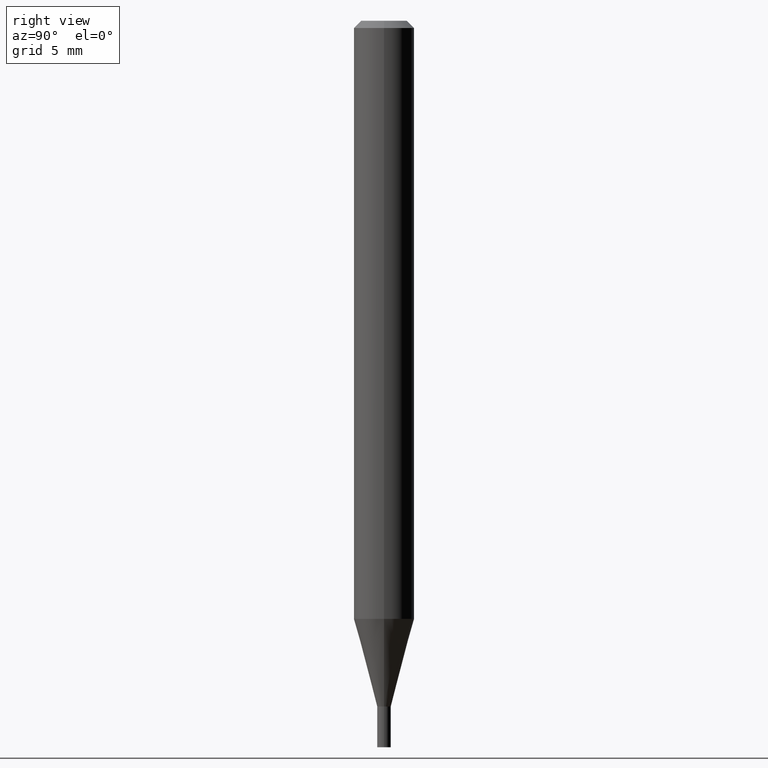
[diagram: clean part render]
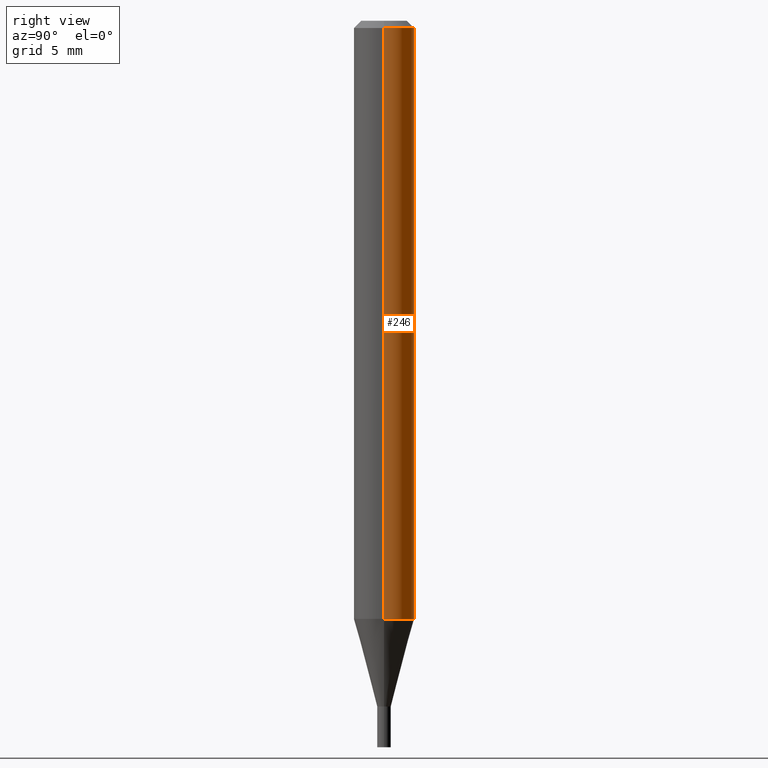
[diagram: same view with one face highlighted and labeled with its STEP entity id]
A machine part, right view. The second image highlights one B-rep face of the part: STEP entity #246.
In plain terms, the highlighted cylindrical surface (edge-blend (fillet) strip) has radius 1.5875 mm, axis along (-0, 0, 1).
Its self-contained STEP definition (entity closure, byte-faithful):
#3 = VERTEX_POINT ( 'NONE', #224 ) ;
#10 = AXIS2_PLACEMENT_3D ( 'NONE', #459, #130, #163 ) ;
#13 = EDGE_LOOP ( 'NONE', ( #422, #400, #143, #165 ) ) ;
#21 = CARTESIAN_POINT ( 'NONE',  ( 3.668203209277705088E-31, -5.237222008264718399E-17, -0.01499999999999999944 ) ) ;
#59 = CARTESIAN_POINT ( 'NONE',  ( -0.06250000000000000000, -1.738078833648857034E-15, -0.01499999999999999944 ) ) ;
#60 = CARTESIAN_POINT ( 'NONE',  ( 0.06250000000000000000, -4.748399034270584284E-15, -1.234995535832908775 ) ) ;
#63 = VERTEX_POINT ( 'NONE', #373 ) ;
#86 = DIRECTION ( 'NONE',  ( -2.445468806185136597E-29, 3.491481338843145583E-15, 1.000000000000000000 ) ) ;
#100 = DIRECTION ( 'NONE',  ( -2.445468806185136877E-29, 3.491481338843145188E-15, 1.000000000000000000 ) ) ;
#105 = CARTESIAN_POINT ( 'NONE',  ( -0.06250000000000000000, 4.440892098500626162E-16, -3.074334431409316114E-30 ) ) ;
#109 = AXIS2_PLACEMENT_3D ( 'NONE', #184, #86, #369 ) ;
#110 = VERTEX_POINT ( 'NONE', #60 ) ;
#130 = DIRECTION ( 'NONE',  ( -2.445468806185136597E-29, 3.491481338843145583E-15, 1.000000000000000000 ) ) ;
#140 = VECTOR ( 'NONE', #100, 39.37007874015748143 ) ;
#143 = ORIENTED_EDGE ( 'NONE', *, *, #425, .F. ) ;
#163 = DIRECTION ( 'NONE',  ( 1.000000000000000000, -6.982962677686266711E-15, 4.876176775795935793E-29 ) ) ;
#165 = ORIENTED_EDGE ( 'NONE', *, *, #394, .F. ) ;
#176 = CIRCLE ( 'NONE', #432, 0.06250000000000000000 ) ;
#184 = CARTESIAN_POINT ( 'NONE',  ( 3.020143058657276543E-29, -4.311963866915191826E-15, -1.234995535832908775 ) ) ;
#187 = LINE ( 'NONE', #105, #361 ) ;
#224 = CARTESIAN_POINT ( 'NONE',  ( -0.06250000000000000000, -3.867874657065129999E-15, -1.234995535832908775 ) ) ;
#229 = DIRECTION ( 'NONE',  ( -2.445468806185136597E-29, 3.491481338843145583E-15, 1.000000000000000000 ) ) ;
#234 = EDGE_CURVE ( 'NONE', #110, #3, #291, .T. ) ;
#246 = ADVANCED_FACE ( 'NONE', ( #381 ), #312, .T. ) ;
#264 = EDGE_CURVE ( 'NONE', #3, #433, #187, .T. ) ;
#273 = LINE ( 'NONE', #385, #140 ) ;
#291 = CIRCLE ( 'NONE', #109, 0.06250000000000000000 ) ;
#309 = DIRECTION ( 'NONE',  ( 1.000000000000000000, -6.982962677686266711E-15, 0.000000000000000000 ) ) ;
#312 = CYLINDRICAL_SURFACE ( 'NONE', #10, 0.06250000000000000000 ) ;
#337 = DIRECTION ( 'NONE',  ( -2.445468806185136877E-29, 3.491481338843145188E-15, 1.000000000000000000 ) ) ;
#361 = VECTOR ( 'NONE', #337, 39.37007874015748143 ) ;
#369 = DIRECTION ( 'NONE',  ( 1.000000000000000000, -6.982962677686262766E-15, 0.000000000000000000 ) ) ;
#373 = CARTESIAN_POINT ( 'NONE',  ( 0.06250000000000000000, -4.888073874380388472E-16, -0.01499999999999999944 ) ) ;
#381 = FACE_OUTER_BOUND ( 'NONE', #13, .T. ) ;
#385 = CARTESIAN_POINT ( 'NONE',  ( 0.06250000000000000000, -4.364351673553916694E-16, 3.047610484872459871E-30 ) ) ;
#394 = EDGE_CURVE ( 'NONE', #110, #63, #273, .T. ) ;
#400 = ORIENTED_EDGE ( 'NONE', *, *, #264, .T. ) ;
#422 = ORIENTED_EDGE ( 'NONE', *, *, #234, .T. ) ;
#425 = EDGE_CURVE ( 'NONE', #63, #433, #176, .T. ) ;
#432 = AXIS2_PLACEMENT_3D ( 'NONE', #21, #229, #309 ) ;
#433 = VERTEX_POINT ( 'NONE', #59 ) ;
#459 = CARTESIAN_POINT ( 'NONE',  ( 0.000000000000000000, 0.000000000000000000, 0.000000000000000000 ) ) ;